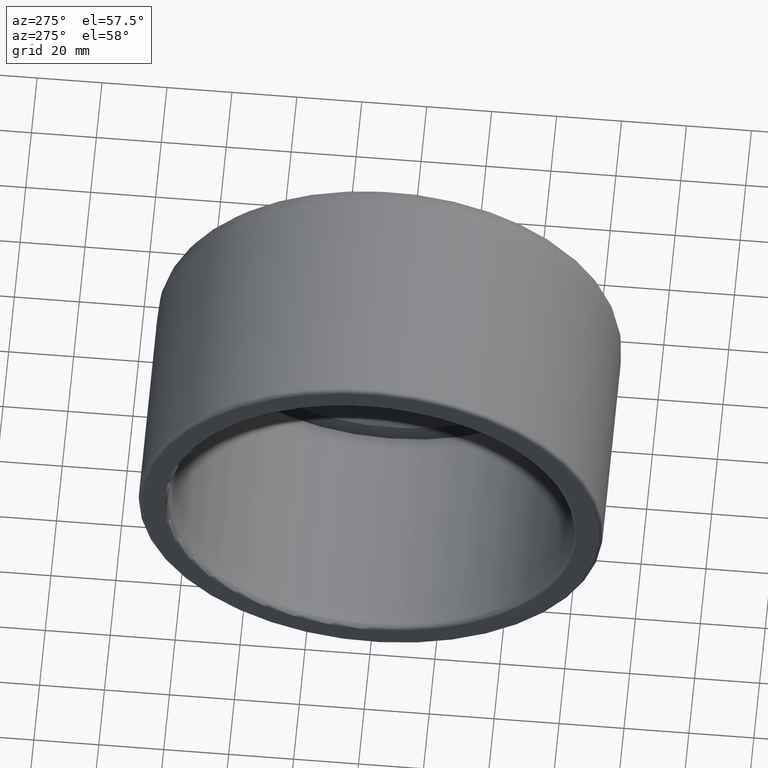
[diagram: clean part render]
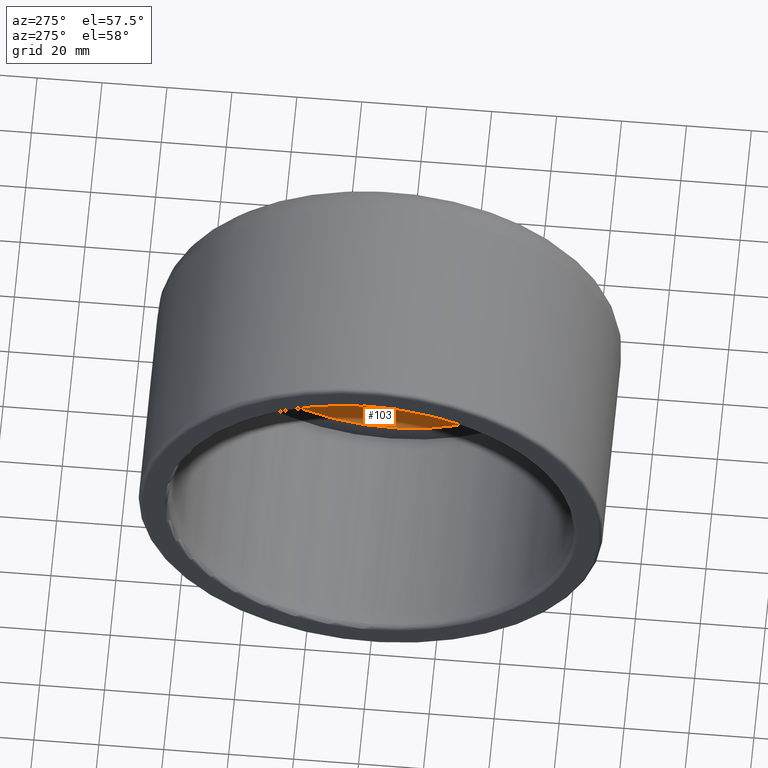
[diagram: same view with one face highlighted and labeled with its STEP entity id]
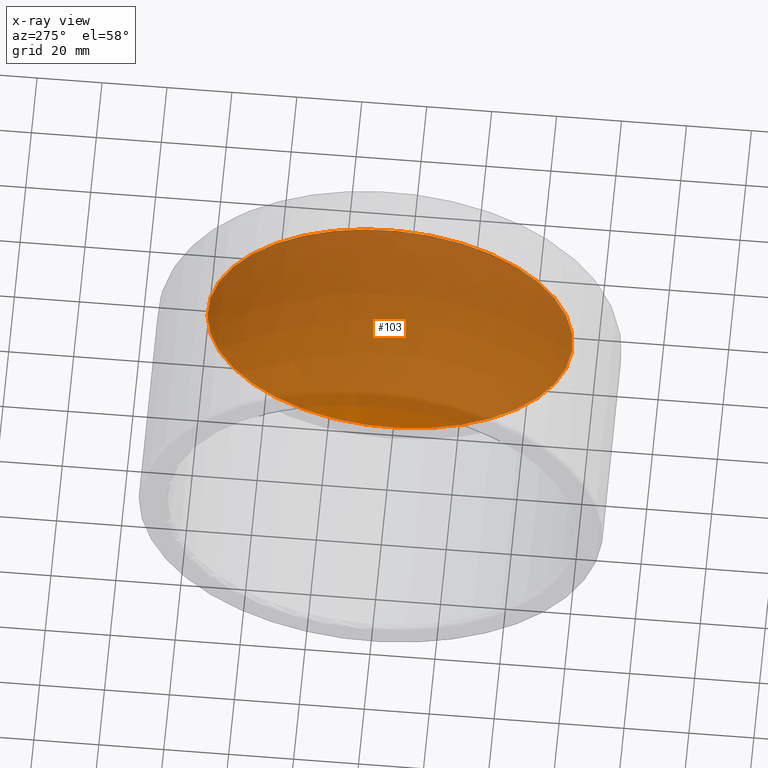
[diagram: x-ray of the same camera — body ghosted, the highlighted face saturated]
A machine part, auxiliary view. The second image highlights one B-rep face of the part: STEP entity #103.
The next image is the same camera in x-ray: the body ghosted, the highlighted face saturated — about 96% of this face is hidden behind the body in this view.
In plain terms, the highlighted spherical surface has radius 100.944 mm.
Its self-contained STEP definition (entity closure, byte-faithful):
#18=SPHERICAL_SURFACE('',#121,100.944006805458);
#35=FACE_OUTER_BOUND('',#50,.T.);
#50=EDGE_LOOP('',(#90));
#60=CIRCLE('',#122,56.25);
#68=VERTEX_POINT('',#183);
#76=EDGE_CURVE('',#68,#68,#60,.T.);
#90=ORIENTED_EDGE('',*,*,#76,.F.);
#103=ADVANCED_FACE('',(#35),#18,.F.);
#121=AXIS2_PLACEMENT_3D('',#182,#154,#155);
#122=AXIS2_PLACEMENT_3D('',#184,#156,#157);
#154=DIRECTION('center_axis',(0.,0.,1.));
#155=DIRECTION('ref_axis',(1.,0.,0.));
#156=DIRECTION('center_axis',(1.,9.97177066188586E-17,0.));
#157=DIRECTION('ref_axis',(0.,0.,-1.));
#182=CARTESIAN_POINT('Origin',(-112.819031311155,-1.38163465578111E-14,
0.));
#183=CARTESIAN_POINT('',(-29.,56.25,0.));
#184=CARTESIAN_POINT('Origin',(-29.,-2.8918134919469E-15,0.));